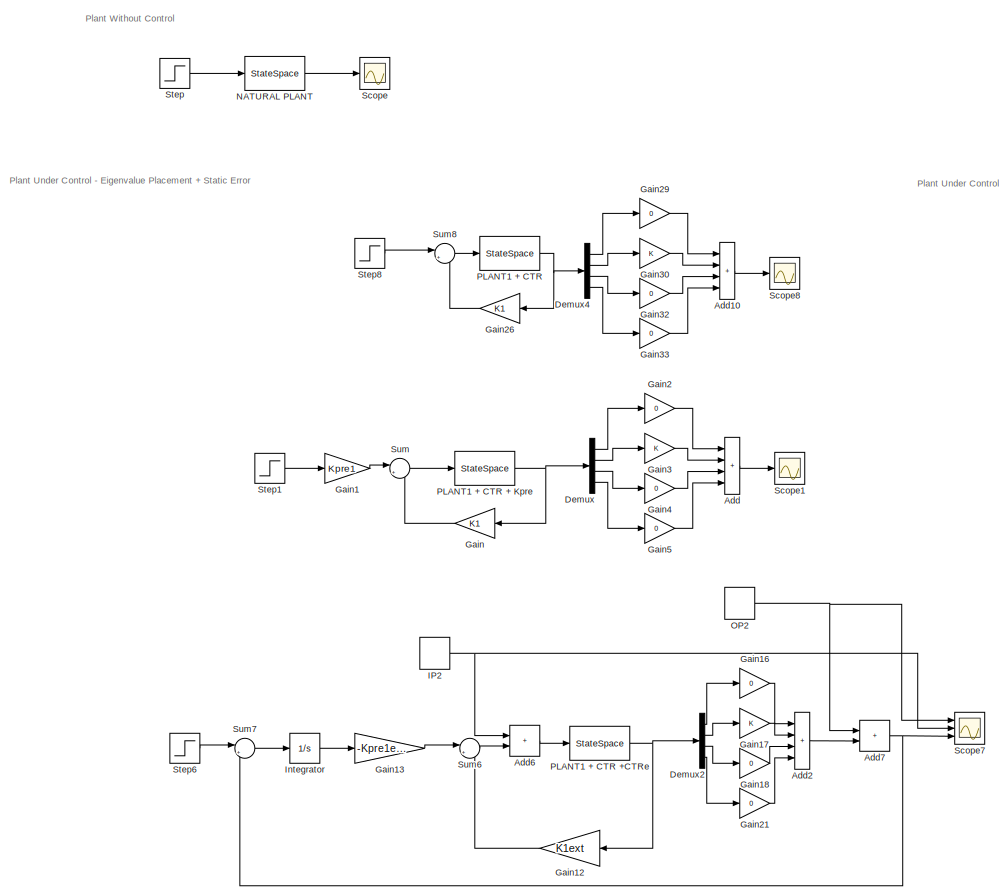
[diagram: root canvas - part 1/5, top left region]
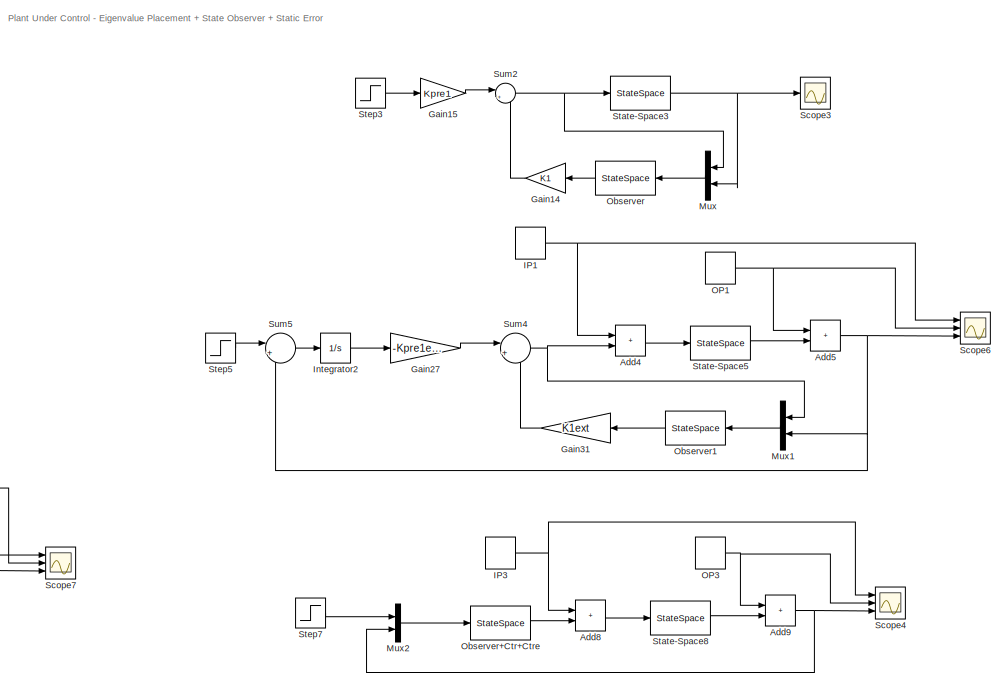
[diagram: root canvas - part 2/5, top right region]
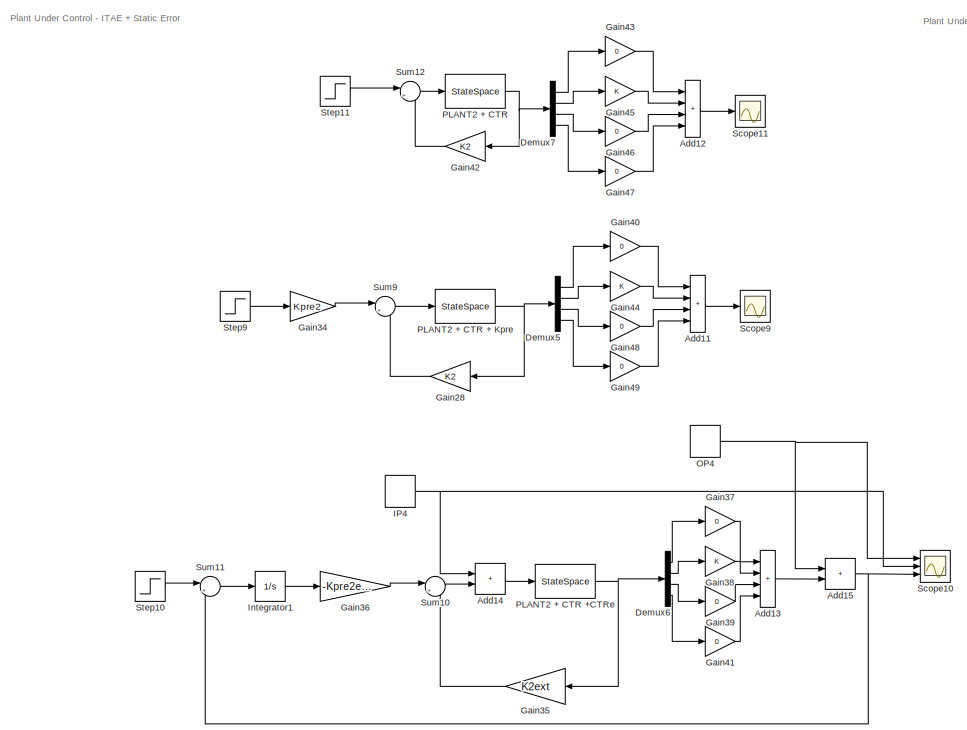
[diagram: root canvas - part 3/5, middle left region]
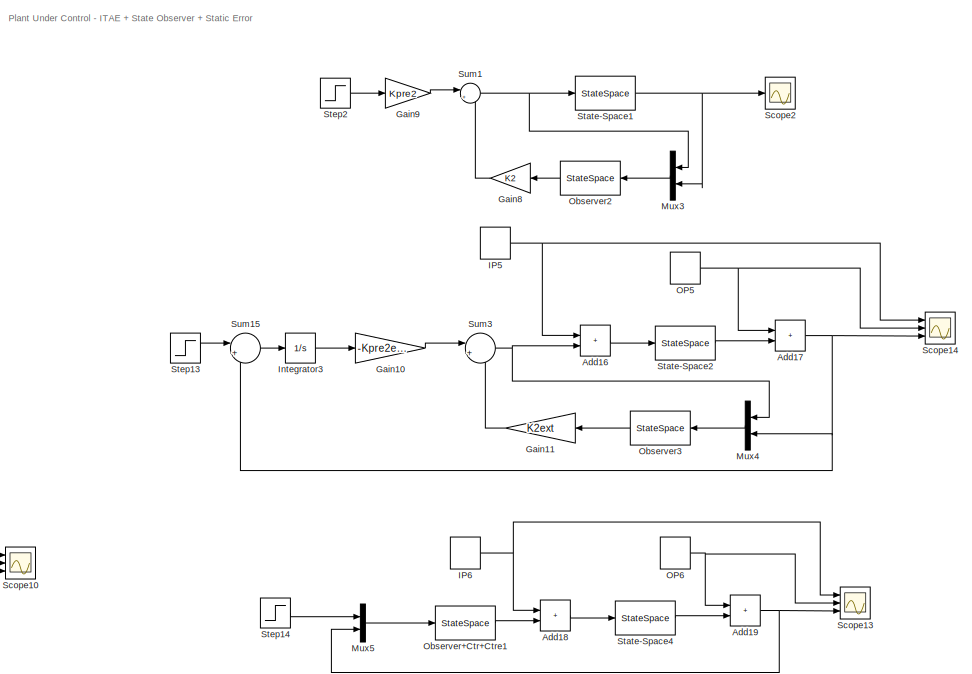
[diagram: root canvas - part 4/5, middle right region]
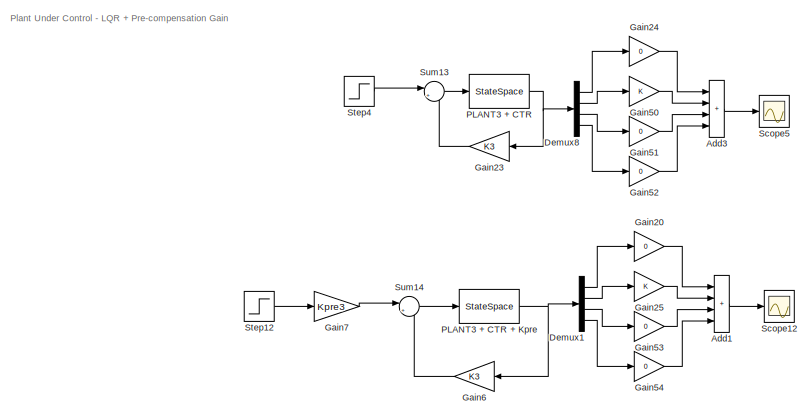
[diagram: root canvas - part 5/5, bottom left region]
MODEL slx_c3078de53b1e
KIND model
CONFIG AbsTol = auto
CONFIG EnableMultiTasking = off
CONFIG FixedStep = auto
CONFIG MaxStep = auto
CONFIG MinStep = auto
CONFIG RelTol = 1e-3
CONFIG SampleTimeConstraint = Unconstrained
CONFIG SolverName = VariableStepAuto
CONFIG StartTime = 0.0
CONFIG StopTime = 20
BLOCK [Sum] Add
  IconShape = rectangular
  Inputs = ++++
  Ports = [4, 1]
BLOCK [Sum] Add1
  IconShape = rectangular
  Inputs = ++++
  Ports = [4, 1]
BLOCK [Sum] Add10
  IconShape = rectangular
  Inputs = ++++
  Ports = [4, 1]
BLOCK [Sum] Add11
  IconShape = rectangular
  Inputs = ++++
  Ports = [4, 1]
BLOCK [Sum] Add12
  IconShape = rectangular
  Inputs = ++++
  Ports = [4, 1]
BLOCK [Sum] Add13
  IconShape = rectangular
  Inputs = ++++
  Ports = [4, 1]
BLOCK [Sum] Add14
  IconShape = rectangular
  Ports = [2, 1]
BLOCK [Sum] Add15
  IconShape = rectangular
  Ports = [2, 1]
BLOCK [Sum] Add16
  IconShape = rectangular
  Ports = [2, 1]
BLOCK [Sum] Add17
  IconShape = rectangular
  Ports = [2, 1]
BLOCK [Sum] Add18
  IconShape = rectangular
  Ports = [2, 1]
BLOCK [Sum] Add19
  IconShape = rectangular
  Ports = [2, 1]
BLOCK [Sum] Add2
  IconShape = rectangular
  Inputs = ++++
  Ports = [4, 1]
BLOCK [Sum] Add3
  IconShape = rectangular
  Inputs = ++++
  Ports = [4, 1]
BLOCK [Sum] Add4
  IconShape = rectangular
  Ports = [2, 1]
BLOCK [Sum] Add5
  IconShape = rectangular
  Ports = [2, 1]
BLOCK [Sum] Add6
  IconShape = rectangular
  Ports = [2, 1]
BLOCK [Sum] Add7
  IconShape = rectangular
  Ports = [2, 1]
BLOCK [Sum] Add8
  IconShape = rectangular
  Ports = [2, 1]
BLOCK [Sum] Add9
  IconShape = rectangular
  Ports = [2, 1]
BLOCK [Demux] Demux
  Ports = [1, 4]
BLOCK [Demux] Demux1
  Ports = [1, 4]
BLOCK [Demux] Demux2
  Ports = [1, 4]
BLOCK [Demux] Demux4
  Ports = [1, 4]
BLOCK [Demux] Demux5
  Ports = [1, 4]
BLOCK [Demux] Demux6
  Ports = [1, 4]
BLOCK [Demux] Demux7
  Ports = [1, 4]
BLOCK [Demux] Demux8
  Ports = [1, 4]
BLOCK [Gain] Gain
  Gain = K1
  Multiplication = Matrix(K*u)
BLOCK [Gain] Gain1
  Gain = Kpre1
BLOCK [Gain] Gain10
  Gain = -Kpre2ext
BLOCK [Gain] Gain11
  Gain = K2ext
  Multiplication = Matrix(K*u)
BLOCK [Gain] Gain12
  Gain = K1ext
  Multiplication = Matrix(K*u)
BLOCK [Gain] Gain13
  Gain = -Kpre1ext
BLOCK [Gain] Gain14
  Gain = K1
  Multiplication = Matrix(K*u)
BLOCK [Gain] Gain15
  Gain = Kpre1
BLOCK [Gain] Gain16
  Gain = 0
BLOCK [Gain] Gain17
BLOCK [Gain] Gain18
  Gain = 0
BLOCK [Gain] Gain2
  Gain = 0
BLOCK [Gain] Gain20
  Gain = 0
BLOCK [Gain] Gain21
  Gain = 0
BLOCK [Gain] Gain23
  Gain = K3
  Multiplication = Matrix(K*u)
BLOCK [Gain] Gain24
  Gain = 0
BLOCK [Gain] Gain25
BLOCK [Gain] Gain26
  Gain = K1
  Multiplication = Matrix(K*u)
BLOCK [Gain] Gain27
  Gain = -Kpre1ext
BLOCK [Gain] Gain28
  Gain = K2
  Multiplication = Matrix(K*u)
BLOCK [Gain] Gain29
  Gain = 0
BLOCK [Gain] Gain3
BLOCK [Gain] Gain30
BLOCK [Gain] Gain31
  Gain = K1ext
  Multiplication = Matrix(K*u)
BLOCK [Gain] Gain32
  Gain = 0
BLOCK [Gain] Gain33
  Gain = 0
BLOCK [Gain] Gain34
  Gain = Kpre2
BLOCK [Gain] Gain35
  Gain = K2ext
  Multiplication = Matrix(K*u)
BLOCK [Gain] Gain36
  Gain = -Kpre2ext
BLOCK [Gain] Gain37
  Gain = 0
BLOCK [Gain] Gain38
BLOCK [Gain] Gain39
  Gain = 0
BLOCK [Gain] Gain4
  Gain = 0
BLOCK [Gain] Gain40
  Gain = 0
BLOCK [Gain] Gain41
  Gain = 0
BLOCK [Gain] Gain42
  Gain = K2
  Multiplication = Matrix(K*u)
BLOCK [Gain] Gain43
  Gain = 0
BLOCK [Gain] Gain44
BLOCK [Gain] Gain45
BLOCK [Gain] Gain46
  Gain = 0
BLOCK [Gain] Gain47
  Gain = 0
BLOCK [Gain] Gain48
  Gain = 0
BLOCK [Gain] Gain49
  Gain = 0
BLOCK [Gain] Gain5
  Gain = 0
BLOCK [Gain] Gain50
BLOCK [Gain] Gain51
  Gain = 0
BLOCK [Gain] Gain52
  Gain = 0
BLOCK [Gain] Gain53
  Gain = 0
BLOCK [Gain] Gain54
  Gain = 0
BLOCK [Gain] Gain6
  Gain = K3
  Multiplication = Matrix(K*u)
BLOCK [Gain] Gain7
  Gain = Kpre3
BLOCK [Gain] Gain8
  Gain = K2
  Multiplication = Matrix(K*u)
BLOCK [Gain] Gain9
  Gain = Kpre2
BLOCK [DiscretePulseGenerator] IP1
  Amplitude = IP
  Period = 20
  PhaseDelay = 12
  Ports = [0, 1]
  PulseType = Time based
  PulseWidth = 15
BLOCK [DiscretePulseGenerator] IP2
  Amplitude = IP
  Period = 20
  PhaseDelay = 12
  Ports = [0, 1]
  PulseType = Time based
  PulseWidth = 15
BLOCK [DiscretePulseGenerator] IP3
  Amplitude = IP
  Period = 20
  PhaseDelay = 12
  Ports = [0, 1]
  PulseType = Time based
  PulseWidth = 15
BLOCK [DiscretePulseGenerator] IP4
  Amplitude = IP
  Period = 20
  PhaseDelay = 12
  Ports = [0, 1]
  PulseType = Time based
  PulseWidth = 15
BLOCK [DiscretePulseGenerator] IP5
  Amplitude = IP
  Period = 20
  PhaseDelay = 12
  Ports = [0, 1]
  PulseType = Time based
  PulseWidth = 15
BLOCK [DiscretePulseGenerator] IP6
  Amplitude = IP
  Period = 20
  PhaseDelay = 12
  Ports = [0, 1]
  PulseType = Time based
  PulseWidth = 15
BLOCK [Integrator] Integrator
  Ports = [1, 1]
BLOCK [Integrator] Integrator1
  Ports = [1, 1]
BLOCK [Integrator] Integrator2
  Ports = [1, 1]
BLOCK [Integrator] Integrator3
  Ports = [1, 1]
BLOCK [Mux] Mux
  DisplayOption = bar
  Inputs = 2
  Ports = [2, 1]
BLOCK [Mux] Mux1
  DisplayOption = bar
  Inputs = 2
  Ports = [2, 1]
BLOCK [Mux] Mux2
  DisplayOption = bar
  Inputs = 2
  Ports = [2, 1]
BLOCK [Mux] Mux3
  DisplayOption = bar
  Inputs = 2
  Ports = [2, 1]
BLOCK [Mux] Mux4
  DisplayOption = bar
  Inputs = 2
  Ports = [2, 1]
BLOCK [Mux] Mux5
  DisplayOption = bar
  Inputs = 2
  Ports = [2, 1]
BLOCK [StateSpace] NATURAL PLANT
  A = A
  B = B
  C = C
  D = D
  InitialCondition = 0
  Ports = [1, 1]
BLOCK [DiscretePulseGenerator] OP1
  Amplitude = OP
  Period = 20
  PhaseDelay = 5
  Ports = [0, 1]
  PulseType = Time based
  PulseWidth = 10
BLOCK [DiscretePulseGenerator] OP2
  Amplitude = OP
  Period = 20
  PhaseDelay = 5
  Ports = [0, 1]
  PulseType = Time based
  PulseWidth = 10
BLOCK [DiscretePulseGenerator] OP3
  Amplitude = OP
  Period = 20
  PhaseDelay = 5
  Ports = [0, 1]
  PulseType = Time based
  PulseWidth = 10
BLOCK [DiscretePulseGenerator] OP4
  Amplitude = OP
  Period = 20
  PhaseDelay = 5
  Ports = [0, 1]
  PulseType = Time based
  PulseWidth = 10
BLOCK [DiscretePulseGenerator] OP5
  Amplitude = OP
  Period = 20
  PhaseDelay = 5
  Ports = [0, 1]
  PulseType = Time based
  PulseWidth = 10
BLOCK [DiscretePulseGenerator] OP6
  Amplitude = OP
  Period = 20
  PhaseDelay = 5
  Ports = [0, 1]
  PulseType = Time based
  PulseWidth = 10
BLOCK [StateSpace] Observer
  A = Aobs1
  B = Bobs1
  C = Cobs1
  D = Dobs1
  InitialCondition = 0
  Ports = [1, 1]
BLOCK [StateSpace] Observer+Ctr+Ctre
  A = Aocc1
  B = Bocc1
  C = Cocc1
  D = Docc1
  InitialCondition = 0
  Ports = [1, 1]
BLOCK [StateSpace] Observer+Ctr+Ctre1
  A = Aocc2
  B = Bocc2
  C = Cocc2
  D = Docc2
  InitialCondition = 0
  Ports = [1, 1]
BLOCK [StateSpace] Observer1
  A = Aobs1
  B = Bobs1
  C = Cobs1
  D = Dobs1
  InitialCondition = 0
  Ports = [1, 1]
BLOCK [StateSpace] Observer2
  A = Aobs2
  B = Bobs2
  C = Cobs2
  D = Dobs2
  InitialCondition = 0
  Ports = [1, 1]
BLOCK [StateSpace] Observer3
  A = Aobs2
  B = Bobs2
  C = Cobs2
  D = Dobs2
  InitialCondition = 0
  Ports = [1, 1]
BLOCK [StateSpace] PLANT1 + CTR
  A = A
  B = B
  C = eye(n)
  D = zeros(n,1)
  InitialCondition = 0
  Ports = [1, 1]
BLOCK [StateSpace] PLANT1 + CTR + Kpre
  A = A
  B = B
  C = eye(n)
  D = zeros(n,1)
  InitialCondition = 0
  Ports = [1, 1]
BLOCK [StateSpace] PLANT1 + CTR +CTRe
  A = S*A
  B = S*B
  C = S*eye(n)
  D = S*zeros(n,1)
  InitialCondition = 0
  Ports = [1, 1]
BLOCK [StateSpace] PLANT2 + CTR 
  A = A
  B = B
  C = eye(n)
  D = zeros(n,1)
  InitialCondition = 0
  Ports = [1, 1]
BLOCK [StateSpace] PLANT2 + CTR + Kpre
  A = A
  B = B
  C = eye(n)
  D = zeros(n,1)
  InitialCondition = 0
  Ports = [1, 1]
BLOCK [StateSpace] PLANT2 + CTR +CTRe
  A = S*A
  B = S*B
  C = S*eye(n)
  D = S*zeros(n,1)
  InitialCondition = 0
  Ports = [1, 1]
BLOCK [StateSpace] PLANT3 + CTR
  A = A
  B = B
  C = eye(n)
  D = zeros(n,1)
  InitialCondition = 0
  Ports = [1, 1]
BLOCK [StateSpace] PLANT3 + CTR + Kpre
  A = A
  B = B
  C = eye(n)
  D = zeros(n,1)
  InitialCondition = 0
  Ports = [1, 1]
BLOCK [Scope] Scope
  Floating = off
  NumInputPorts = 1
  Ports = [1]
  ScopeSpecificationString = Simulink.scopes.TimeScopeBlockCfg('CurrentConfiguration', extmgr.ConfigurationSet(extmgr.Configuration('Core','General UI',true),extmgr.Configuration('Core','Source UI',true),extmgr.Configuration('Sources','WiredSimulink',true),extmgr.Configuration('Visuals','Time Domain',true,'SerializedDisplays',{struct('MinYLimReal','-5607195818410930864128.00000','MaxYLimReal','623021757601214365696.00000','YL...<+1526ch>
BLOCK [Scope] Scope1
  Floating = off
  NumInputPorts = 1
  Ports = [1]
  ScopeSpecificationString = Simulink.scopes.TimeScopeBlockCfg('CurrentConfiguration', extmgr.ConfigurationSet(extmgr.Configuration('Core','General UI',true),extmgr.Configuration('Core','Source UI',true),extmgr.Configuration('Sources','WiredSimulink',true,'DataLoggingVariableName','ScopeData1'),extmgr.Configuration('Visuals','Time Domain',true,'SerializedDisplays',{struct('MinYLimReal','-0.12989','MaxYLimReal','1.16902','YLab...<+1391ch>
BLOCK [Scope] Scope10
  Floating = off
  NumInputPorts = 3
  Ports = [3]
  ScopeSpecificationString = Simulink.scopes.TimeScopeBlockCfg('CurrentConfiguration', extmgr.ConfigurationSet(extmgr.Configuration('Core','General UI',true),extmgr.Configuration('Core','Source UI',true),extmgr.Configuration('Sources','WiredSimulink',true,'DataLoggingVariableName','ScopeData2'),extmgr.Configuration('Visuals','Time Domain',true,'SerializedDisplays',{struct('MinYLimReal','-0.1375','MaxYLimReal','1.2375','YLabel...<+1396ch>
BLOCK [Scope] Scope11
  Floating = off
  NumInputPorts = 1
  Ports = [1]
  ScopeSpecificationString = Simulink.scopes.TimeScopeBlockCfg('CurrentConfiguration', extmgr.ConfigurationSet(extmgr.Configuration('Core','General UI',true),extmgr.Configuration('Core','Source UI',true),extmgr.Configuration('Sources','WiredSimulink',true,'DataLoggingVariableName','ScopeData3'),extmgr.Configuration('Visuals','Time Domain',true,'SerializedDisplays',{struct('MinYLimReal','-0.12986','MaxYLimReal','1.16877','YLab...<+1362ch>
BLOCK [Scope] Scope12
  Floating = off
  NumInputPorts = 1
  Ports = [1]
  ScopeSpecificationString = Simulink.scopes.TimeScopeBlockCfg('CurrentConfiguration', extmgr.ConfigurationSet(extmgr.Configuration('Core','General UI',true),extmgr.Configuration('Core','Source UI',true),extmgr.Configuration('Sources','WiredSimulink',true,'DataLoggingVariableName','ScopeData5'),extmgr.Configuration('Visuals','Time Domain',true,'SerializedDisplays',{struct('MinYLimReal','-0.12986','MaxYLimReal','1.16877','YLab...<+1362ch>
BLOCK [Scope] Scope13
  Floating = off
  NumInputPorts = 3
  Ports = [3]
  ScopeSpecificationString = Simulink.scopes.TimeScopeBlockCfg('CurrentConfiguration', extmgr.ConfigurationSet(extmgr.Configuration('Core','General UI',true),extmgr.Configuration('Core','Source UI',true),extmgr.Configuration('Sources','WiredSimulink',true,'DataLoggingVariableName','ScopeData8'),extmgr.Configuration('Visuals','Time Domain',true,'SerializedDisplays',{struct('MinYLimReal','-0.1375','MaxYLimReal','1.2375','YLabel...<+1399ch>
BLOCK [Scope] Scope14
  Floating = off
  NumInputPorts = 3
  Ports = [3]
  ScopeSpecificationString = Simulink.scopes.TimeScopeBlockCfg('CurrentConfiguration', extmgr.ConfigurationSet(extmgr.Configuration('Core','General UI',true),extmgr.Configuration('Core','Source UI',true),extmgr.Configuration('Sources','WiredSimulink',true,'DataLoggingVariableName','ScopeData9'),extmgr.Configuration('Visuals','Time Domain',true,'SerializedDisplays',{struct('MinYLimReal','-0.1375','MaxYLimReal','1.2375','YLabel...<+1397ch>
BLOCK [Scope] Scope2
  Floating = off
  NumInputPorts = 1
  Ports = [1]
  ScopeSpecificationString = Simulink.scopes.TimeScopeBlockCfg('CurrentConfiguration', extmgr.ConfigurationSet(extmgr.Configuration('Core','General UI',true),extmgr.Configuration('Core','Source UI',true),extmgr.Configuration('Sources','WiredSimulink',true,'DataLoggingVariableName','ScopeData10'),extmgr.Configuration('Visuals','Time Domain',true,'SerializedDisplays',{struct('MinYLimReal','-0.12989','MaxYLimReal','1.16899','YLa...<+1401ch>
BLOCK [Scope] Scope3
  Floating = off
  NumInputPorts = 1
  Ports = [1]
  ScopeSpecificationString = Simulink.scopes.TimeScopeBlockCfg('CurrentConfiguration', extmgr.ConfigurationSet(extmgr.Configuration('Core','General UI',true),extmgr.Configuration('Core','Source UI',true),extmgr.Configuration('Sources','WiredSimulink',true,'DataLoggingVariableName','ScopeData3'),extmgr.Configuration('Visuals','Time Domain',true,'SerializedDisplays',{struct('MinYLimReal','-0.12989','MaxYLimReal','1.16902','YLab...<+1400ch>
BLOCK [Scope] Scope4
  Floating = off
  NumInputPorts = 3
  Ports = [3]
  ScopeSpecificationString = Simulink.scopes.TimeScopeBlockCfg('CurrentConfiguration', extmgr.ConfigurationSet(extmgr.Configuration('Core','General UI',true),extmgr.Configuration('Core','Source UI',true),extmgr.Configuration('Sources','WiredSimulink',true,'DataLoggingVariableName','ScopeData6'),extmgr.Configuration('Visuals','Time Domain',true,'SerializedDisplays',{struct('MinYLimReal','-0.1399','MaxYLimReal','1.2591','YLabel...<+1398ch>
BLOCK [Scope] Scope5
  Floating = off
  NumInputPorts = 1
  Ports = [1]
  ScopeSpecificationString = Simulink.scopes.TimeScopeBlockCfg('CurrentConfiguration', extmgr.ConfigurationSet(extmgr.Configuration('Core','General UI',true),extmgr.Configuration('Core','Source UI',true),extmgr.Configuration('Sources','WiredSimulink',true,'DataLoggingVariableName','ScopeData7'),extmgr.Configuration('Visuals','Time Domain',true,'SerializedDisplays',{struct('MinYLimReal','-0.12986','MaxYLimReal','1.16877','YLab...<+1362ch>
BLOCK [Scope] Scope6
  Floating = off
  NumInputPorts = 3
  Ports = [3]
  ScopeSpecificationString = Simulink.scopes.TimeScopeBlockCfg('CurrentConfiguration', extmgr.ConfigurationSet(extmgr.Configuration('Core','General UI',true),extmgr.Configuration('Core','Source UI',true),extmgr.Configuration('Sources','WiredSimulink',true,'DataLoggingVariableName','ScopeData6'),extmgr.Configuration('Visuals','Time Domain',true,'SerializedDisplays',{struct('MinYLimReal','-0.1399','MaxYLimReal','1.2591','YLabel...<+1396ch>
BLOCK [Scope] Scope7
  Floating = off
  NumInputPorts = 3
  Ports = [3]
  ScopeSpecificationString = Simulink.scopes.TimeScopeBlockCfg('CurrentConfiguration', extmgr.ConfigurationSet(extmgr.Configuration('Core','General UI',true),extmgr.Configuration('Core','Source UI',true),extmgr.Configuration('Sources','WiredSimulink',true,'DataLoggingVariableName','ScopeData7'),extmgr.Configuration('Visuals','Time Domain',true,'SerializedDisplays',{struct('MinYLimReal','-0.1375','MaxYLimReal','1.2375','YLabel...<+1396ch>
BLOCK [Scope] Scope8
  Floating = off
  NumInputPorts = 1
  Ports = [1]
  ScopeSpecificationString = Simulink.scopes.TimeScopeBlockCfg('CurrentConfiguration', extmgr.ConfigurationSet(extmgr.Configuration('Core','General UI',true),extmgr.Configuration('Core','Source UI',true),extmgr.Configuration('Sources','WiredSimulink',true,'DataLoggingVariableName','ScopeData1'),extmgr.Configuration('Visuals','Time Domain',true,'SerializedDisplays',{struct('MinYLimReal','-0.00014','MaxYLimReal','0.00002','YLab...<+1393ch>
BLOCK [Scope] Scope9
  Floating = off
  NumInputPorts = 1
  Ports = [1]
  ScopeSpecificationString = Simulink.scopes.TimeScopeBlockCfg('CurrentConfiguration', extmgr.ConfigurationSet(extmgr.Configuration('Core','General UI',true),extmgr.Configuration('Core','Source UI',true),extmgr.Configuration('Sources','WiredSimulink',true,'DataLoggingVariableName','ScopeData4'),extmgr.Configuration('Visuals','Time Domain',true,'SerializedDisplays',{struct('MinYLimReal','-0.12986','MaxYLimReal','1.16877','YLab...<+1362ch>
BLOCK [StateSpace] State-Space1
  A = A
  B = B
  C = C
  D = D
  InitialCondition = 0
  Ports = [1, 1]
BLOCK [StateSpace] State-Space2
  A = S*A
  B = S*B
  C = S*C
  D = S*D
  InitialCondition = 0
  Ports = [1, 1]
BLOCK [StateSpace] State-Space3
  A = A
  B = B
  C = C
  D = D
  InitialCondition = 0
  Ports = [1, 1]
BLOCK [StateSpace] State-Space4
  A = S*A
  B = S*B
  C = S*C
  D = S*D
  InitialCondition = 0
  Ports = [1, 1]
BLOCK [StateSpace] State-Space5
  A = S*A
  B = S*B
  C = S*C
  D = S*D
  InitialCondition = 0
  Ports = [1, 1]
BLOCK [StateSpace] State-Space8
  A = S.*A
  B = S.*B
  C = S.*C
  D = S.*D
  InitialCondition = 0
  Ports = [1, 1]
BLOCK [Step] Step
  SampleTime = 0
  Time = 0
BLOCK [Step] Step1
  SampleTime = 0
  Time = 0
BLOCK [Step] Step10
  SampleTime = 0
  Time = 0
BLOCK [Step] Step11
  SampleTime = 0
  Time = 0
BLOCK [Step] Step12
  SampleTime = 0
  Time = 0
BLOCK [Step] Step13
  SampleTime = 0
BLOCK [Step] Step14
  SampleTime = 0
BLOCK [Step] Step2
  SampleTime = 0
  Time = 0
BLOCK [Step] Step3
  SampleTime = 0
  Time = 0
BLOCK [Step] Step4
  SampleTime = 0
  Time = 0
BLOCK [Step] Step5
  SampleTime = 0
BLOCK [Step] Step6
  SampleTime = 0
  Time = 0
BLOCK [Step] Step7
  SampleTime = 0
BLOCK [Step] Step8
  SampleTime = 0
  Time = 0
BLOCK [Step] Step9
  SampleTime = 0
  Time = 0
BLOCK [Sum] Sum
  Inputs = |+-
  Ports = [2, 1]
BLOCK [Sum] Sum1
  Inputs = |+-
  Ports = [2, 1]
BLOCK [Sum] Sum10
  Inputs = |+-
  Ports = [2, 1]
BLOCK [Sum] Sum11
  Inputs = |+-
  Ports = [2, 1]
BLOCK [Sum] Sum12
  Inputs = |+-
  Ports = [2, 1]
BLOCK [Sum] Sum13
  Inputs = |+-
  Ports = [2, 1]
BLOCK [Sum] Sum14
  Inputs = |+-
  Ports = [2, 1]
BLOCK [Sum] Sum15
  Inputs = |+-
  Ports = [2, 1]
BLOCK [Sum] Sum2
  Inputs = |+-
  Ports = [2, 1]
BLOCK [Sum] Sum3
  Inputs = |+-
  Ports = [2, 1]
BLOCK [Sum] Sum4
  Inputs = |+-
  Ports = [2, 1]
BLOCK [Sum] Sum5
  Inputs = |+-
  Ports = [2, 1]
BLOCK [Sum] Sum6
  Inputs = |+-
  Ports = [2, 1]
BLOCK [Sum] Sum7
  Inputs = |+-
  Ports = [2, 1]
BLOCK [Sum] Sum8
  Inputs = |+-
  Ports = [2, 1]
BLOCK [Sum] Sum9
  Inputs = |+-
  Ports = [2, 1]
ANNOTATION (root): Plant Under Control - Eigenvalue Placement + State Observer + Static Error
ANNOTATION (root): Plant Under Control - Eigenvalue Placement + Static Error
ANNOTATION (root): Plant Under Control - ITAE + State Observer + Static Error
ANNOTATION (root): Plant Under Control - ITAE + Static Error
ANNOTATION (root): Plant Under Control - LQR + Pre-compensation Gain
ANNOTATION (root): Plant Without Control
LINE Add10:1 -> Scope8:1
LINE Add11:1 -> Scope9:1
LINE Add12:1 -> Scope11:1
LINE Add13:1 -> Add15:2
LINE Add14:1 -> PLANT2 + CTR +CTRe:1
NET Add15:1 -> Scope10:3, Sum11:2
LINE Add16:1 -> State-Space2:1
NET Add17:1 -> Mux4:2, Scope14:3, Sum15:2
LINE Add18:1 -> State-Space4:1
NET Add19:1 -> Mux5:2, Scope13:3
LINE Add1:1 -> Scope12:1
LINE Add2:1 -> Add7:2
LINE Add3:1 -> Scope5:1
LINE Add4:1 -> State-Space5:1
NET Add5:1 -> Mux1:2, Scope6:3, Sum5:2
LINE Add6:1 -> PLANT1 + CTR +CTRe:1
NET Add7:1 -> Scope7:3, Sum7:2
LINE Add8:1 -> State-Space8:1
NET Add9:1 -> Mux2:2, Scope4:3
LINE Add:1 -> Scope1:1
LINE Demux1:1 -> Gain20:1
LINE Demux1:2 -> Gain25:1
LINE Demux1:3 -> Gain53:1
LINE Demux1:4 -> Gain54:1
LINE Demux2:1 -> Gain16:1
LINE Demux2:2 -> Gain17:1
LINE Demux2:3 -> Gain18:1
LINE Demux2:4 -> Gain21:1
LINE Demux4:1 -> Gain29:1
LINE Demux4:2 -> Gain30:1
LINE Demux4:3 -> Gain32:1
LINE Demux4:4 -> Gain33:1
LINE Demux5:1 -> Gain40:1
LINE Demux5:2 -> Gain44:1
LINE Demux5:3 -> Gain48:1
LINE Demux5:4 -> Gain49:1
LINE Demux6:1 -> Gain37:1
LINE Demux6:2 -> Gain38:1
LINE Demux6:3 -> Gain39:1
LINE Demux6:4 -> Gain41:1
LINE Demux7:1 -> Gain43:1
LINE Demux7:2 -> Gain45:1
LINE Demux7:3 -> Gain46:1
LINE Demux7:4 -> Gain47:1
LINE Demux8:1 -> Gain24:1
LINE Demux8:2 -> Gain50:1
LINE Demux8:3 -> Gain51:1
LINE Demux8:4 -> Gain52:1
LINE Demux:1 -> Gain2:1
LINE Demux:2 -> Gain3:1
LINE Demux:3 -> Gain4:1
LINE Demux:4 -> Gain5:1
LINE Gain10:1 -> Sum3:1
LINE Gain11:1 -> Sum3:2
LINE Gain12:1 -> Sum6:2
LINE Gain13:1 -> Sum6:1
LINE Gain14:1 -> Sum2:2
LINE Gain15:1 -> Sum2:1
LINE Gain16:1 -> Add2:1
LINE Gain17:1 -> Add2:2
LINE Gain18:1 -> Add2:3
LINE Gain1:1 -> Sum:1
LINE Gain20:1 -> Add1:1
LINE Gain21:1 -> Add2:4
LINE Gain23:1 -> Sum13:2
LINE Gain24:1 -> Add3:1
LINE Gain25:1 -> Add1:2
LINE Gain26:1 -> Sum8:2
LINE Gain27:1 -> Sum4:1
LINE Gain28:1 -> Sum9:2
LINE Gain29:1 -> Add10:1
LINE Gain2:1 -> Add:1
LINE Gain30:1 -> Add10:2
LINE Gain31:1 -> Sum4:2
LINE Gain32:1 -> Add10:3
LINE Gain33:1 -> Add10:4
LINE Gain34:1 -> Sum9:1
LINE Gain35:1 -> Sum10:2
LINE Gain36:1 -> Sum10:1
LINE Gain37:1 -> Add13:1
LINE Gain38:1 -> Add13:2
LINE Gain39:1 -> Add13:3
LINE Gain3:1 -> Add:2
LINE Gain40:1 -> Add11:1
LINE Gain41:1 -> Add13:4
LINE Gain42:1 -> Sum12:2
LINE Gain43:1 -> Add12:1
LINE Gain44:1 -> Add11:2
LINE Gain45:1 -> Add12:2
LINE Gain46:1 -> Add12:3
LINE Gain47:1 -> Add12:4
LINE Gain48:1 -> Add11:3
LINE Gain49:1 -> Add11:4
LINE Gain4:1 -> Add:3
LINE Gain50:1 -> Add3:2
LINE Gain51:1 -> Add3:3
LINE Gain52:1 -> Add3:4
LINE Gain53:1 -> Add1:3
LINE Gain54:1 -> Add1:4
LINE Gain5:1 -> Add:4
LINE Gain6:1 -> Sum14:2
LINE Gain7:1 -> Sum14:1
LINE Gain8:1 -> Sum1:2
LINE Gain9:1 -> Sum1:1
LINE Gain:1 -> Sum:2
NET IP1:1 -> Add4:1, Scope6:1
NET IP2:1 -> Add6:1, Scope7:2
NET IP3:1 -> Add8:1, Scope4:1
NET IP4:1 -> Add14:1, Scope10:2
NET IP5:1 -> Add16:1, Scope14:1
NET IP6:1 -> Add18:1, Scope13:1
LINE Integrator1:1 -> Gain36:1
LINE Integrator2:1 -> Gain27:1
LINE Integrator3:1 -> Gain10:1
LINE Integrator:1 -> Gain13:1
LINE Mux1:1 -> Observer1:1
LINE Mux2:1 -> Observer+Ctr+Ctre:1
LINE Mux3:1 -> Observer2:1
LINE Mux4:1 -> Observer3:1
LINE Mux5:1 -> Observer+Ctr+Ctre1:1
LINE Mux:1 -> Observer:1
LINE NATURAL PLANT:1 -> Scope:1
NET OP1:1 -> Add5:1, Scope6:2
NET OP2:1 -> Add7:1, Scope7:1
NET OP3:1 -> Add9:1, Scope4:2
NET OP4:1 -> Add15:1, Scope10:1
NET OP5:1 -> Add17:1, Scope14:2
NET OP6:1 -> Add19:1, Scope13:2
LINE Observer+Ctr+Ctre1:1 -> Add18:2
LINE Observer+Ctr+Ctre:1 -> Add8:2
LINE Observer1:1 -> Gain31:1
LINE Observer2:1 -> Gain8:1
LINE Observer3:1 -> Gain11:1
LINE Observer:1 -> Gain14:1
NET PLANT1 + CTR + Kpre:1 -> Demux:1, Gain:1
NET PLANT1 + CTR +CTRe:1 -> Demux2:1, Gain12:1
NET PLANT1 + CTR:1 -> Demux4:1, Gain26:1
NET PLANT2 + CTR + Kpre:1 -> Demux5:1, Gain28:1
NET PLANT2 + CTR +CTRe:1 -> Demux6:1, Gain35:1
NET PLANT2 + CTR :1 -> Demux7:1, Gain42:1
NET PLANT3 + CTR + Kpre:1 -> Demux1:1, Gain6:1
NET PLANT3 + CTR:1 -> Demux8:1, Gain23:1
NET State-Space1:1 -> Mux3:2, Scope2:1
LINE State-Space2:1 -> Add17:2
NET State-Space3:1 -> Mux:2, Scope3:1
LINE State-Space4:1 -> Add19:2
LINE State-Space5:1 -> Add5:2
LINE State-Space8:1 -> Add9:2
LINE Step10:1 -> Sum11:1
LINE Step11:1 -> Sum12:1
LINE Step12:1 -> Gain7:1
LINE Step13:1 -> Sum15:1
LINE Step14:1 -> Mux5:1
LINE Step1:1 -> Gain1:1
LINE Step2:1 -> Gain9:1
LINE Step3:1 -> Gain15:1
LINE Step4:1 -> Sum13:1
LINE Step5:1 -> Sum5:1
LINE Step6:1 -> Sum7:1
LINE Step7:1 -> Mux2:1
LINE Step8:1 -> Sum8:1
LINE Step9:1 -> Gain34:1
LINE Step:1 -> NATURAL PLANT:1
LINE Sum10:1 -> Add14:2
LINE Sum11:1 -> Integrator1:1
LINE Sum12:1 -> PLANT2 + CTR :1
LINE Sum13:1 -> PLANT3 + CTR:1
LINE Sum14:1 -> PLANT3 + CTR + Kpre:1
LINE Sum15:1 -> Integrator3:1
NET Sum1:1 -> Mux3:1, State-Space1:1
NET Sum2:1 -> Mux:1, State-Space3:1
NET Sum3:1 -> Add16:2, Mux4:1
NET Sum4:1 -> Add4:2, Mux1:1
LINE Sum5:1 -> Integrator2:1
LINE Sum6:1 -> Add6:2
LINE Sum7:1 -> Integrator:1
LINE Sum8:1 -> PLANT1 + CTR:1
LINE Sum9:1 -> PLANT2 + CTR + Kpre:1
LINE Sum:1 -> PLANT1 + CTR + Kpre:1
note: NET lines group one-source signal fan-out (src -> all destinations, sorted); 1:1 wires keep LINE
